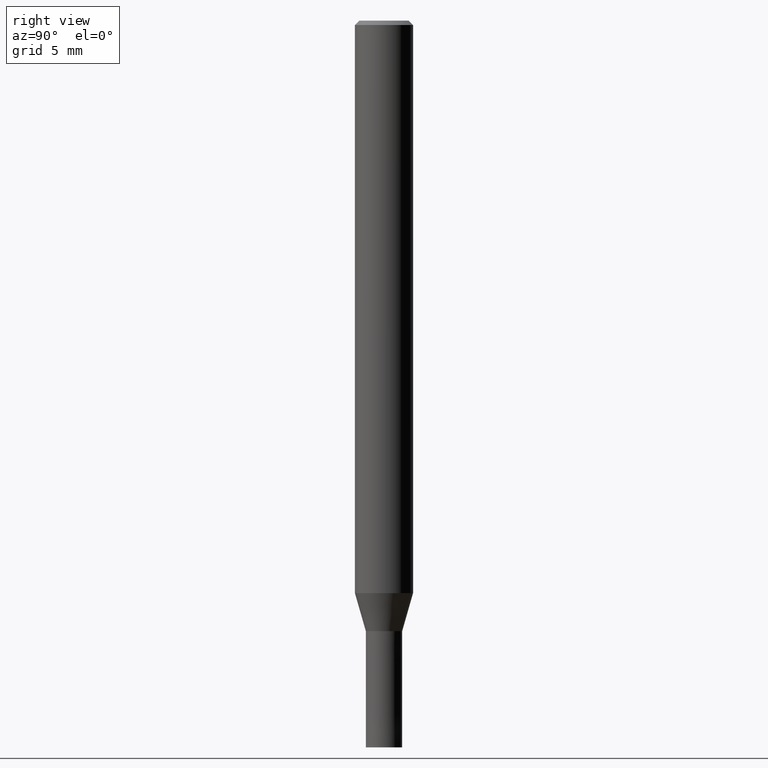
[diagram: clean part render]
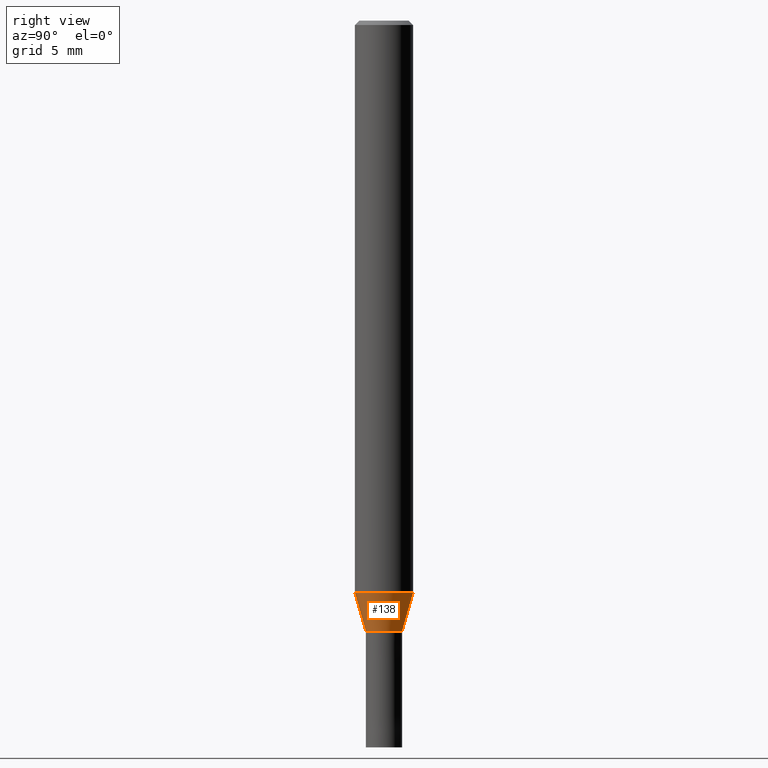
[diagram: same view with one face highlighted and labeled with its STEP entity id]
A machine part, right view. The second image highlights one B-rep face of the part: STEP entity #138.
In plain terms, the highlighted conical surface has half-angle 15.997 deg.
Its self-contained STEP definition (entity closure, byte-faithful):
#84=VERTEX_POINT('',#205);
#88=VERTEX_POINT('',#209);
#92=EDGE_CURVE('',#84,#88,#213,.T.);
#110=EDGE_CURVE('',#88,#160,#231,.T.);
#130=EDGE_CURVE('',#84,#144,#256,.T.);
#138=ADVANCED_FACE('',(#264),#265,.T.);
#144=VERTEX_POINT('',#271);
#152=EDGE_CURVE('',#160,#144,#281,.T.);
#160=VERTEX_POINT('',#291);
#205=CARTESIAN_POINT('',(0.0,1.99995,-39.384));
#209=CARTESIAN_POINT('',(0.0,1.24995,-42.0));
#213=LINE('',#344,#345);
#231=CIRCLE('',#370,1.24995);
#256=CIRCLE('',#397,1.99995);
#264=FACE_OUTER_BOUND('',#407,.T.);
#265=CONICAL_SURFACE('',#408,1.62495,0.279208199033747);
#271=CARTESIAN_POINT('',(2.44915147732706E-016,-1.99995,-39.384));
#281=LINE('',#427,#428);
#291=CARTESIAN_POINT('',(1.53069671196028E-016,-1.24995,-42.0));
#344=CARTESIAN_POINT('',(-1.98992409464367E-016,1.62495,-40.692));
#345=VECTOR('',#480,1.0);
#370=AXIS2_PLACEMENT_3D('',#493,#494,#495);
#397=AXIS2_PLACEMENT_3D('',#529,#530,#531);
#407=EDGE_LOOP('',(#539,#540,#541,#542));
#408=AXIS2_PLACEMENT_3D('',#543,#544,#545);
#427=CARTESIAN_POINT('',(1.98992409464367E-016,-1.62495,-40.692));
#428=VECTOR('',#561,1.0);
#480=DIRECTION('',(3.37494895041124E-017,-0.275594597388538,-0.961273955691222));
#493=CARTESIAN_POINT('',(0.0,0.0,-42.0));
#494=DIRECTION('',(0.0,0.0,-1.0));
#495=DIRECTION('',(0.0,1.0,0.0));
#529=CARTESIAN_POINT('',(0.0,0.0,-39.384));
#530=DIRECTION('',(0.0,0.0,-1.0));
#531=DIRECTION('',(0.0,1.0,0.0));
#539=ORIENTED_EDGE('',*,*,#92,.F.);
#540=ORIENTED_EDGE('',*,*,#130,.T.);
#541=ORIENTED_EDGE('',*,*,#152,.F.);
#542=ORIENTED_EDGE('',*,*,#110,.F.);
#543=CARTESIAN_POINT('',(0.0,0.0,-40.692));
#544=DIRECTION('',(-0.0,-0.0,1.0));
#545=DIRECTION('',(0.0,1.0,0.0));
#561=DIRECTION('',(3.37494895041124E-017,-0.275594597388538,0.961273955691222));